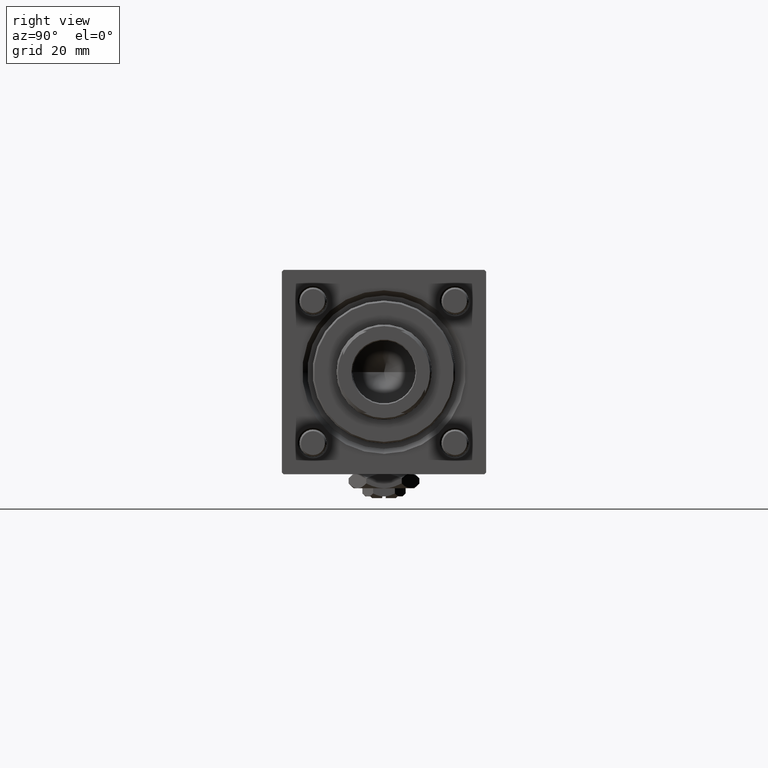
[diagram: clean part render]
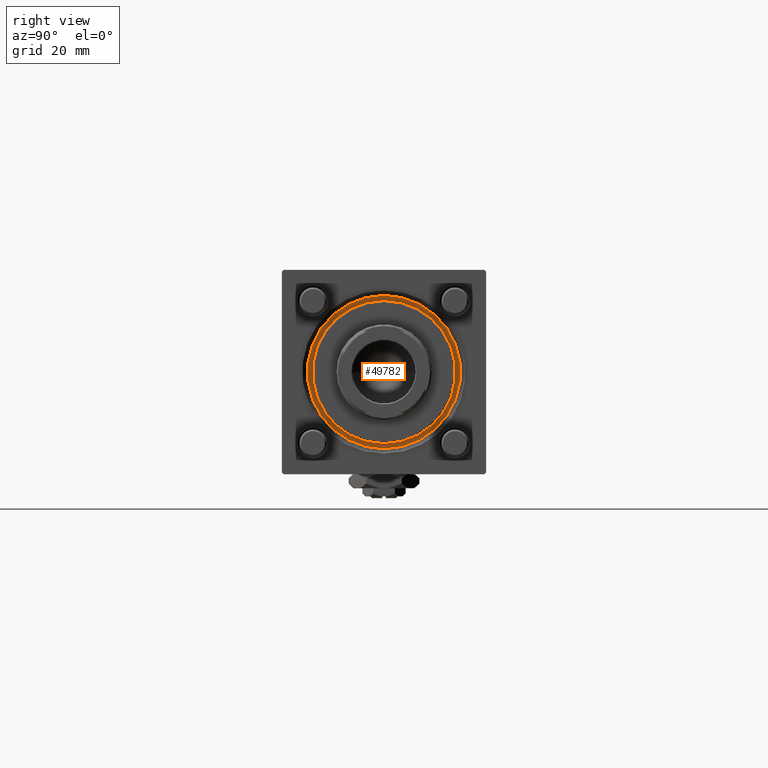
[diagram: same view with one face highlighted and labeled with its STEP entity id]
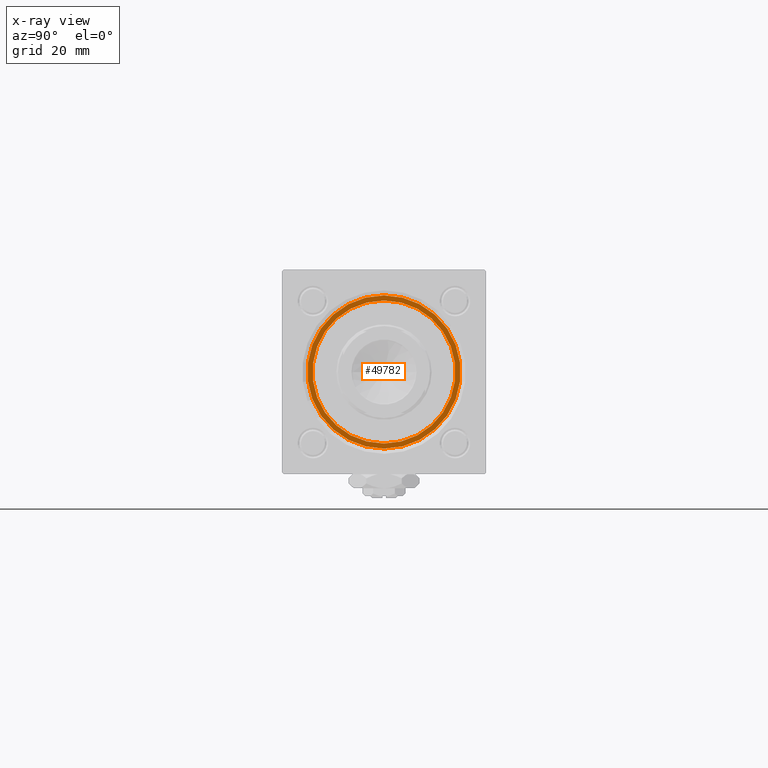
[diagram: x-ray of the same camera — body ghosted, the highlighted face saturated]
A machine part, right view. The second image highlights one B-rep face of the part: STEP entity #49782.
The next image is the same camera in x-ray: the body ghosted, the highlighted face saturated — about 0% of this face is hidden behind the body in this view.
In plain terms, the highlighted planar face has unit normal (1, 0, 0).
Its self-contained STEP definition (entity closure, byte-faithful):
#320 = DIRECTION ( 'NONE',  ( 1.000000000000000000, 0.000000000000000000, 0.000000000000000000 ) ) ;
#2637 = VERTEX_POINT ( 'NONE', #30576 ) ;
#4874 = DIRECTION ( 'NONE',  ( 0.000000000000000000, 0.000000000000000000, 1.000000000000000000 ) ) ;
#6880 = VERTEX_POINT ( 'NONE', #17505 ) ;
#7377 = CARTESIAN_POINT ( 'NONE',  ( 0.000000000000000000, 0.000000000000000000, 28.69999999999999929 ) ) ;
#9148 = DIRECTION ( 'NONE',  ( 1.000000000000000000, 0.000000000000000000, 0.000000000000000000 ) ) ;
#10432 = DIRECTION ( 'NONE',  ( 0.000000000000000000, 0.000000000000000000, 1.000000000000000000 ) ) ;
#14054 = CARTESIAN_POINT ( 'NONE',  ( 0.000000000000000000, 0.000000000000000000, 28.69999999999999929 ) ) ;
#14592 = CARTESIAN_POINT ( 'NONE',  ( 0.000000000000000000, 0.000000000000000000, 28.69999999999999929 ) ) ;
#15614 = CIRCLE ( 'NONE', #18452, 22.50000000000000355 ) ;
#15661 = AXIS2_PLACEMENT_3D ( 'NONE', #14054, #4874, #54283 ) ;
#16507 = AXIS2_PLACEMENT_3D ( 'NONE', #7377, #39354, #57975 ) ;
#16527 = ORIENTED_EDGE ( 'NONE', *, *, #44909, .T. ) ;
#17498 = VERTEX_POINT ( 'NONE', #49439 ) ;
#17505 = CARTESIAN_POINT ( 'NONE',  ( -21.00000000000000000, 0.000000000000000000, 28.69999999999999929 ) ) ;
#17756 = CARTESIAN_POINT ( 'NONE',  ( 0.000000000000000000, 0.000000000000000000, 28.69999999999999929 ) ) ;
#18452 = AXIS2_PLACEMENT_3D ( 'NONE', #57766, #53324, #320 ) ;
#18462 = FACE_OUTER_BOUND ( 'NONE', #28618, .T. ) ;
#20572 = EDGE_CURVE ( 'NONE', #6880, #24715, #49629, .T. ) ;
#24715 = VERTEX_POINT ( 'NONE', #29086 ) ;
#28618 = EDGE_LOOP ( 'NONE', ( #16527, #55948 ) ) ;
#29086 = CARTESIAN_POINT ( 'NONE',  ( 21.00000000000000000, 2.571758278209441661E-15, 28.69999999999999929 ) ) ;
#30576 = CARTESIAN_POINT ( 'NONE',  ( 22.50000000000000355, 2.755455298081545172E-15, 28.69999999999999929 ) ) ;
#30597 = AXIS2_PLACEMENT_3D ( 'NONE', #17756, #53840, #9148 ) ;
#35464 = ORIENTED_EDGE ( 'NONE', *, *, #49366, .F. ) ;
#36376 = CIRCLE ( 'NONE', #16507, 21.00000000000000000 ) ;
#39354 = DIRECTION ( 'NONE',  ( 0.000000000000000000, 0.000000000000000000, 1.000000000000000000 ) ) ;
#43410 = EDGE_LOOP ( 'NONE', ( #50638, #35464 ) ) ;
#44909 = EDGE_CURVE ( 'NONE', #17498, #2637, #54184, .T. ) ;
#45391 = DIRECTION ( 'NONE',  ( 1.000000000000000000, 0.000000000000000000, -0.000000000000000000 ) ) ;
#49366 = EDGE_CURVE ( 'NONE', #24715, #6880, #36376, .T. ) ;
#49439 = CARTESIAN_POINT ( 'NONE',  ( -22.50000000000000355, 0.000000000000000000, 28.69999999999999929 ) ) ;
#49629 = CIRCLE ( 'NONE', #15661, 21.00000000000000000 ) ;
#49782 = ADVANCED_FACE ( 'NONE', ( #55126, #18462 ), #50990, .T. ) ;
#50638 = ORIENTED_EDGE ( 'NONE', *, *, #20572, .F. ) ;
#50990 = PLANE ( 'NONE',  #55272 ) ;
#53324 = DIRECTION ( 'NONE',  ( 0.000000000000000000, 0.000000000000000000, 1.000000000000000000 ) ) ;
#53840 = DIRECTION ( 'NONE',  ( 0.000000000000000000, 0.000000000000000000, 1.000000000000000000 ) ) ;
#54184 = CIRCLE ( 'NONE', #30597, 22.50000000000000355 ) ;
#54283 = DIRECTION ( 'NONE',  ( 1.000000000000000000, 0.000000000000000000, 0.000000000000000000 ) ) ;
#55126 = FACE_BOUND ( 'NONE', #43410, .T. ) ;
#55272 = AXIS2_PLACEMENT_3D ( 'NONE', #14592, #10432, #45391 ) ;
#55374 = EDGE_CURVE ( 'NONE', #2637, #17498, #15614, .T. ) ;
#55948 = ORIENTED_EDGE ( 'NONE', *, *, #55374, .T. ) ;
#57766 = CARTESIAN_POINT ( 'NONE',  ( 0.000000000000000000, 0.000000000000000000, 28.69999999999999929 ) ) ;
#57975 = DIRECTION ( 'NONE',  ( 1.000000000000000000, 0.000000000000000000, 0.000000000000000000 ) ) ;